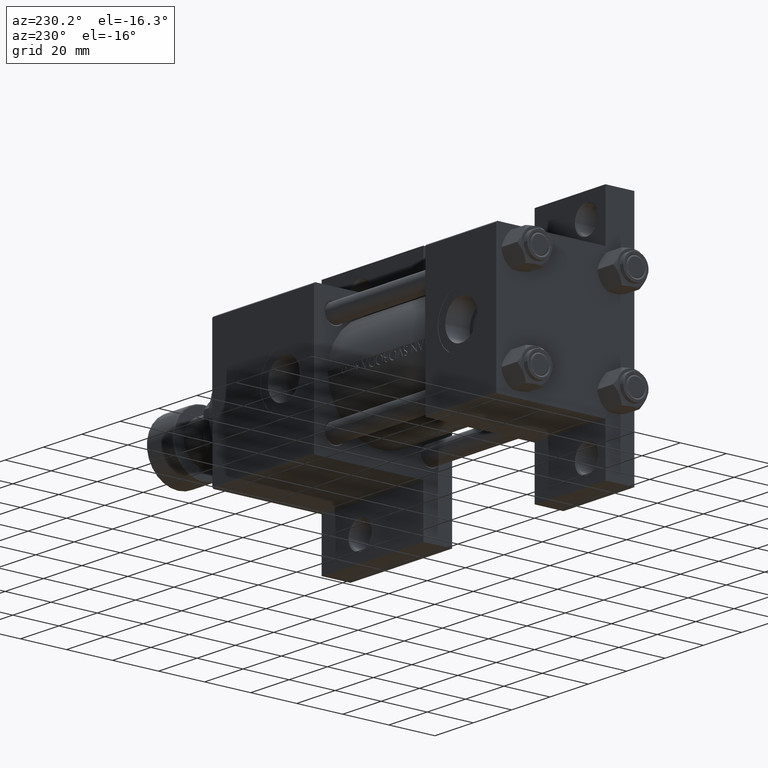
[diagram: clean part render]
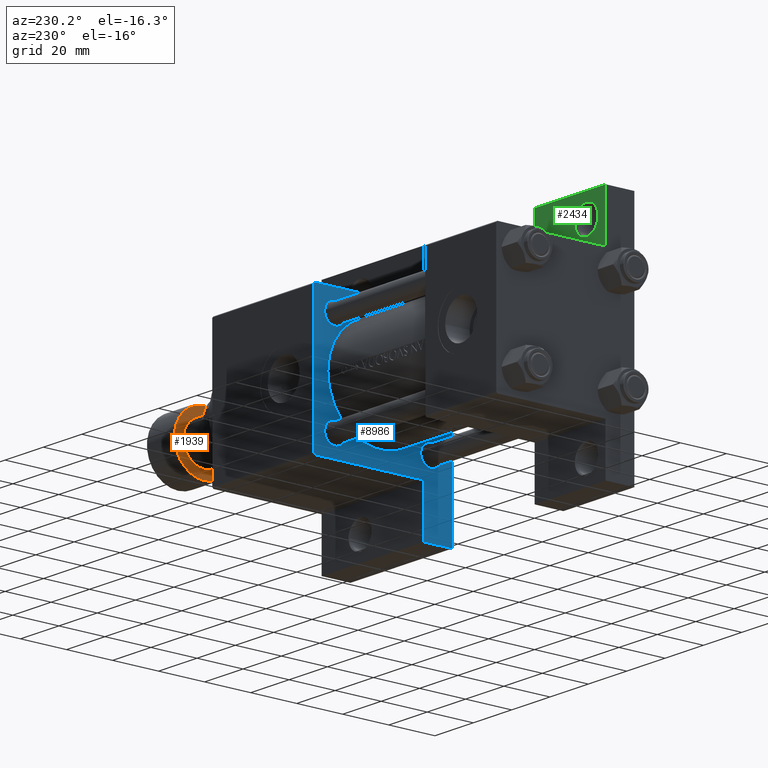
[diagram: same view with three faces highlighted in distinct colors, each labeled with its STEP entity id]
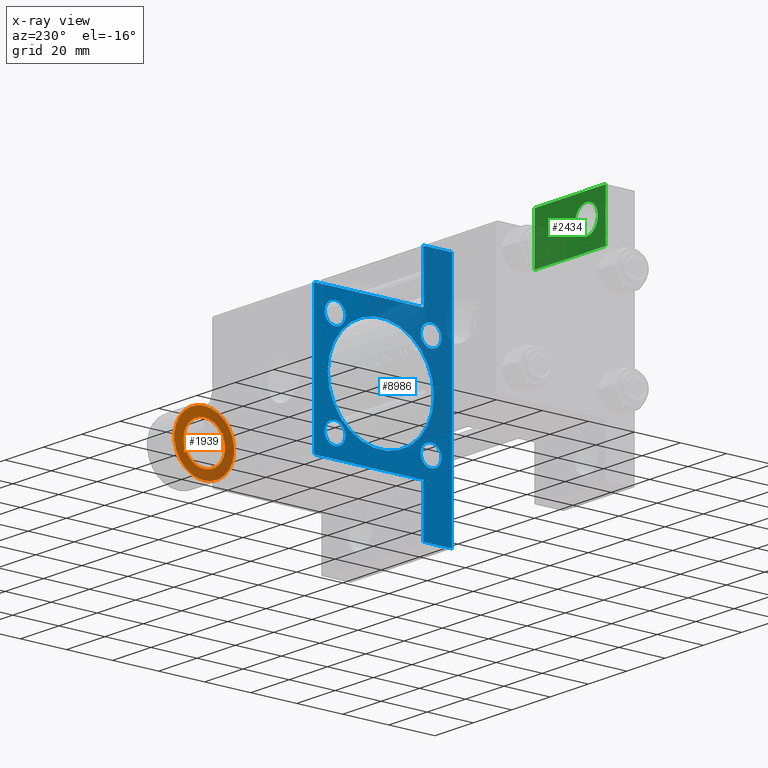
[diagram: x-ray of the same camera — body ghosted, the three highlighted faces saturated]
A machine part, auxiliary view with three faces highlighted in distinct colors.
The next image is the same camera in x-ray (body ghosted, the three faces saturated) — at least one of them is partly hidden behind the body in this view.
Their STEP definitions:

[orange] entity #1939 — the highlighted planar face has unit normal (1, 0, 0).
#1452 = DIRECTION ( 'NONE',  ( 1.000000000000000000, 0.000000000000000000, -0.000000000000000000 ) ) ;
#1504 = DIRECTION ( 'NONE',  ( -0.000000000000000000, -0.000000000000000000, -1.000000000000000000 ) ) ;
#1939 = ADVANCED_FACE ( 'NONE', ( #12660, #20683 ), #31373, .F. ) ;
#3838 = DIRECTION ( 'NONE',  ( 0.000000000000000000, 0.000000000000000000, -1.000000000000000000 ) ) ;
#5598 = CARTESIAN_POINT ( 'NONE',  ( 13.00000000000000000, 0.000000000000000000, -14.00000000000000000 ) ) ;
#5927 = AXIS2_PLACEMENT_3D ( 'NONE', #27235, #31136, #1452 ) ;
#7126 = EDGE_CURVE ( 'NONE', #30731, #32462, #22411, .T. ) ;
#8397 = EDGE_LOOP ( 'NONE', ( #15660, #26892 ) ) ;
#9276 = CARTESIAN_POINT ( 'NONE',  ( 0.000000000000000000, 0.000000000000000000, -14.00000000000000000 ) ) ;
#9520 = DIRECTION ( 'NONE',  ( 1.000000000000000000, 0.000000000000000000, 0.000000000000000000 ) ) ;
#11142 = CARTESIAN_POINT ( 'NONE',  ( 0.000000000000000000, 0.000000000000000000, -14.00000000000000000 ) ) ;
#11255 = CIRCLE ( 'NONE', #46961, 9.000000000000000000 ) ;
#11544 = AXIS2_PLACEMENT_3D ( 'NONE', #9276, #23846, #9520 ) ;
#12660 = FACE_OUTER_BOUND ( 'NONE', #8397, .T. ) ;
#15660 = ORIENTED_EDGE ( 'NONE', *, *, #44758, .T. ) ;
#20683 = FACE_BOUND ( 'NONE', #45260, .T. ) ;
#22411 = CIRCLE ( 'NONE', #11544, 13.00000000000000000 ) ;
#23846 = DIRECTION ( 'NONE',  ( -0.000000000000000000, -0.000000000000000000, -1.000000000000000000 ) ) ;
#24054 = CARTESIAN_POINT ( 'NONE',  ( 9.000000000000000000, 0.000000000000000000, -14.00000000000000000 ) ) ;
#26101 = DIRECTION ( 'NONE',  ( -1.000000000000000000, 0.000000000000000000, 0.000000000000000000 ) ) ;
#26340 = CARTESIAN_POINT ( 'NONE',  ( 0.000000000000000000, 0.000000000000000000, -14.00000000000000000 ) ) ;
#26470 = ORIENTED_EDGE ( 'NONE', *, *, #26522, .F. ) ;
#26522 = EDGE_CURVE ( 'NONE', #40440, #36792, #36073, .T. ) ;
#26892 = ORIENTED_EDGE ( 'NONE', *, *, #7126, .T. ) ;
#27235 = CARTESIAN_POINT ( 'NONE',  ( 0.000000000000000000, 0.000000000000000000, -14.00000000000000000 ) ) ;
#30190 = CIRCLE ( 'NONE', #37953, 13.00000000000000000 ) ;
#30233 = DIRECTION ( 'NONE',  ( 0.000000000000000000, 0.000000000000000000, -1.000000000000000000 ) ) ;
#30726 = EDGE_CURVE ( 'NONE', #36792, #40440, #11255, .T. ) ;
#30731 = VERTEX_POINT ( 'NONE', #33499 ) ;
#31136 = DIRECTION ( 'NONE',  ( 0.000000000000000000, 0.000000000000000000, 1.000000000000000000 ) ) ;
#31373 = PLANE ( 'NONE',  #5927 ) ;
#32462 = VERTEX_POINT ( 'NONE', #5598 ) ;
#32790 = DIRECTION ( 'NONE',  ( -1.000000000000000000, 0.000000000000000000, 0.000000000000000000 ) ) ;
#33008 = CARTESIAN_POINT ( 'NONE',  ( -9.000000000000000000, 1.102182119232617714E-15, -14.00000000000000000 ) ) ;
#33499 = CARTESIAN_POINT ( 'NONE',  ( -13.00000000000000000, 1.622657008870242882E-15, -14.00000000000000000 ) ) ;
#34826 = CARTESIAN_POINT ( 'NONE',  ( 0.000000000000000000, 0.000000000000000000, -14.00000000000000000 ) ) ;
#36073 = CIRCLE ( 'NONE', #44587, 9.000000000000000000 ) ;
#36792 = VERTEX_POINT ( 'NONE', #24054 ) ;
#37953 = AXIS2_PLACEMENT_3D ( 'NONE', #34826, #1504, #47199 ) ;
#40440 = VERTEX_POINT ( 'NONE', #33008 ) ;
#41719 = ORIENTED_EDGE ( 'NONE', *, *, #30726, .F. ) ;
#44587 = AXIS2_PLACEMENT_3D ( 'NONE', #26340, #30233, #26101 ) ;
#44758 = EDGE_CURVE ( 'NONE', #32462, #30731, #30190, .T. ) ;
#45260 = EDGE_LOOP ( 'NONE', ( #41719, #26470 ) ) ;
#46961 = AXIS2_PLACEMENT_3D ( 'NONE', #11142, #3838, #32790 ) ;
#47199 = DIRECTION ( 'NONE',  ( 1.000000000000000000, 0.000000000000000000, 0.000000000000000000 ) ) ;

[blue] entity #8986 — the highlighted planar face has unit normal (-1, 0, -0).
#70 = DIRECTION ( 'NONE',  ( 0.000000000000000000, 0.000000000000000000, -1.000000000000000000 ) ) ;
#162 = CIRCLE ( 'NONE', #41298, 23.00000000000000000 ) ;
#1249 = ORIENTED_EDGE ( 'NONE', *, *, #25659, .F. ) ;
#1477 = DIRECTION ( 'NONE',  ( 0.000000000000000000, 0.000000000000000000, 1.000000000000000000 ) ) ;
#1530 = VECTOR ( 'NONE', #29260, 1000.000000000000000 ) ;
#1551 = VERTEX_POINT ( 'NONE', #5164 ) ;
#3324 = ORIENTED_EDGE ( 'NONE', *, *, #13956, .T. ) ;
#3625 = CARTESIAN_POINT ( 'NONE',  ( 95.00000000000000000, -20.84999999999999076, -25.35000000000001208 ) ) ;
#3704 = CARTESIAN_POINT ( 'NONE',  ( 95.00000000000000000, 0.000000000000000000, 1.000000000000000888 ) ) ;
#3731 = ORIENTED_EDGE ( 'NONE', *, *, #47565, .T. ) ;
#4013 = VECTOR ( 'NONE', #25814, 1000.000000000000114 ) ;
#4037 = CARTESIAN_POINT ( 'NONE',  ( 95.00000000000000000, 51.50000000000000711, -17.49999999999999645 ) ) ;
#4085 = CARTESIAN_POINT ( 'NONE',  ( 95.00000000000000000, -20.84999999999999076, 25.35000000000001208 ) ) ;
#4718 = VECTOR ( 'NONE', #4914, 1000.000000000000000 ) ;
#4914 = DIRECTION ( 'NONE',  ( 0.000000000000000000, -1.000000000000000000, -1.156482317317871478E-16 ) ) ;
#5132 = CARTESIAN_POINT ( 'NONE',  ( 95.00000000000000000, 20.84999999999999787, 20.85000000000000142 ) ) ;
#5164 = CARTESIAN_POINT ( 'NONE',  ( 95.00000000000000000, -30.00000000000000000, -17.49999999999999645 ) ) ;
#5676 = DIRECTION ( 'NONE',  ( 1.000000000000000000, -0.000000000000000000, 0.000000000000000000 ) ) ;
#6223 = CIRCLE ( 'NONE', #21739, 23.00000000000000000 ) ;
#6226 = CARTESIAN_POINT ( 'NONE',  ( 95.00000000000000000, 20.84999999999999787, 16.34999999999999432 ) ) ;
#6391 = CARTESIAN_POINT ( 'NONE',  ( 95.00000000000000000, 29.74999999999999645, 29.74999999999999645 ) ) ;
#6602 = CARTESIAN_POINT ( 'NONE',  ( 95.00000000000000000, 30.00000000000000000, 29.50000000000000000 ) ) ;
#6655 = ORIENTED_EDGE ( 'NONE', *, *, #26188, .T. ) ;
#7438 = LINE ( 'NONE', #30507, #37895 ) ;
#7449 = DIRECTION ( 'NONE',  ( 0.000000000000000000, 0.000000000000000000, -1.000000000000000000 ) ) ;
#7719 = CARTESIAN_POINT ( 'NONE',  ( 95.00000000000000000, -30.00000000000000000, 29.50000000000004619 ) ) ;
#7889 = LINE ( 'NONE', #11314, #38618 ) ;
#8126 = EDGE_LOOP ( 'NONE', ( #12338, #12094, #3324, #21417, #6655, #40461, #37038, #14708, #1249, #28790 ) ) ;
#8202 = DIRECTION ( 'NONE',  ( -1.000000000000000000, 0.000000000000000000, -0.000000000000000000 ) ) ;
#8725 = DIRECTION ( 'NONE',  ( 1.000000000000000000, 0.000000000000000000, 0.000000000000000000 ) ) ;
#8822 = CIRCLE ( 'NONE', #42194, 4.500000000000007105 ) ;
#8824 = CARTESIAN_POINT ( 'NONE',  ( 95.00000000000000000, -20.84999999999999076, 20.85000000000000497 ) ) ;
#8950 = EDGE_LOOP ( 'NONE', ( #27906, #18902 ) ) ;
#8986 = ADVANCED_FACE ( 'NONE', ( #30344, #37412, #18446, #45159, #33283, #11874 ), #29647, .T. ) ;
#9033 = VECTOR ( 'NONE', #18149, 1000.000000000000000 ) ;
#10021 = CIRCLE ( 'NONE', #24767, 4.500000000000007105 ) ;
#10867 = CARTESIAN_POINT ( 'NONE',  ( 95.00000000000000000, 51.50000000000000711, -17.49999999999999645 ) ) ;
#11288 = ORIENTED_EDGE ( 'NONE', *, *, #16689, .T. ) ;
#11314 = CARTESIAN_POINT ( 'NONE',  ( 95.00000000000000000, 30.00000000000000000, 30.00000000000000000 ) ) ;
#11551 = DIRECTION ( 'NONE',  ( 0.000000000000000000, -1.000000000000000000, -1.156482317317871478E-16 ) ) ;
#11600 = CIRCLE ( 'NONE', #38768, 4.500000000000007105 ) ;
#11723 = VECTOR ( 'NONE', #13661, 1000.000000000000000 ) ;
#11874 = FACE_OUTER_BOUND ( 'NONE', #8126, .T. ) ;
#12094 = ORIENTED_EDGE ( 'NONE', *, *, #15135, .T. ) ;
#12180 = EDGE_CURVE ( 'NONE', #14730, #34950, #10021, .T. ) ;
#12218 = AXIS2_PLACEMENT_3D ( 'NONE', #41222, #45105, #33701 ) ;
#12338 = ORIENTED_EDGE ( 'NONE', *, *, #37287, .F. ) ;
#12591 = DIRECTION ( 'NONE',  ( 0.000000000000000000, 0.000000000000000000, 1.000000000000000000 ) ) ;
#12710 = CARTESIAN_POINT ( 'NONE',  ( 95.00000000000000000, 30.00000000000000000, -29.99999999999999289 ) ) ;
#12779 = ORIENTED_EDGE ( 'NONE', *, *, #25207, .T. ) ;
#12881 = VERTEX_POINT ( 'NONE', #14711 ) ;
#12970 = DIRECTION ( 'NONE',  ( 1.000000000000000000, -0.000000000000000000, 0.000000000000000000 ) ) ;
#13661 = DIRECTION ( 'NONE',  ( 0.000000000000000000, 0.000000000000000000, -1.000000000000000000 ) ) ;
#13880 = CARTESIAN_POINT ( 'NONE',  ( 94.99999999999998579, -51.50000000000000711, -29.99999999999999645 ) ) ;
#13946 = CARTESIAN_POINT ( 'NONE',  ( 95.00000000000000000, 30.00000000000000000, 30.00000000000000000 ) ) ;
#13956 = EDGE_CURVE ( 'NONE', #17130, #16578, #17835, .T. ) ;
#14097 = AXIS2_PLACEMENT_3D ( 'NONE', #8824, #12970, #16609 ) ;
#14182 = CARTESIAN_POINT ( 'NONE',  ( 95.00000000000000000, 2.816687638038911957E-15, -22.00000000000000000 ) ) ;
#14708 = ORIENTED_EDGE ( 'NONE', *, *, #38262, .T. ) ;
#14711 = CARTESIAN_POINT ( 'NONE',  ( 95.00000000000000000, 29.50000000000000000, 30.00000000000000000 ) ) ;
#14730 = VERTEX_POINT ( 'NONE', #46570 ) ;
#14892 = EDGE_CURVE ( 'NONE', #28059, #42769, #46710, .T. ) ;
#14993 = EDGE_CURVE ( 'NONE', #34950, #14730, #44366, .T. ) ;
#15135 = EDGE_CURVE ( 'NONE', #12881, #17130, #40161, .T. ) ;
#15270 = DIRECTION ( 'NONE',  ( -0.000000000000000000, 0.000000000000000000, 1.000000000000000000 ) ) ;
#16158 = ORIENTED_EDGE ( 'NONE', *, *, #42796, .T. ) ;
#16564 = DIRECTION ( 'NONE',  ( 0.000000000000000000, 0.000000000000000000, 1.000000000000000000 ) ) ;
#16578 = VERTEX_POINT ( 'NONE', #21127 ) ;
#16609 = DIRECTION ( 'NONE',  ( 0.000000000000000000, 0.000000000000000000, 1.000000000000000000 ) ) ;
#16689 = EDGE_CURVE ( 'NONE', #16827, #46412, #29671, .T. ) ;
#16827 = VERTEX_POINT ( 'NONE', #6226 ) ;
#17011 = EDGE_CURVE ( 'NONE', #45514, #19906, #38219, .T. ) ;
#17057 = EDGE_CURVE ( 'NONE', #31869, #19906, #35559, .T. ) ;
#17130 = VERTEX_POINT ( 'NONE', #6602 ) ;
#17835 = LINE ( 'NONE', #13946, #1530 ) ;
#18041 = CARTESIAN_POINT ( 'NONE',  ( 95.00000000000000000, 20.84999999999999787, 25.35000000000000853 ) ) ;
#18149 = DIRECTION ( 'NONE',  ( -0.000000000000000000, 1.000000000000000000, -0.000000000000000000 ) ) ;
#18446 = FACE_BOUND ( 'NONE', #24242, .T. ) ;
#18618 = AXIS2_PLACEMENT_3D ( 'NONE', #18923, #8202, #15270 ) ;
#18902 = ORIENTED_EDGE ( 'NONE', *, *, #14993, .T. ) ;
#18923 = CARTESIAN_POINT ( 'NONE',  ( 95.00000000000000000, 0.000000000000000000, 0.000000000000000000 ) ) ;
#19906 = VERTEX_POINT ( 'NONE', #13880 ) ;
#19963 = DIRECTION ( 'NONE',  ( 1.000000000000000000, -0.000000000000000000, 0.000000000000000000 ) ) ;
#20183 = EDGE_CURVE ( 'NONE', #24167, #31252, #162, .T. ) ;
#20219 = DIRECTION ( 'NONE',  ( 1.000000000000000000, -0.000000000000000000, 0.000000000000000000 ) ) ;
#20534 = VECTOR ( 'NONE', #7449, 1000.000000000000000 ) ;
#20591 = VERTEX_POINT ( 'NONE', #23866 ) ;
#20682 = CARTESIAN_POINT ( 'NONE',  ( 95.00000000000000000, -30.00000000000000000, 29.99999999999999289 ) ) ;
#20740 = CARTESIAN_POINT ( 'NONE',  ( 95.00000000000000000, 51.50000000000000711, -29.99999999999999645 ) ) ;
#21127 = CARTESIAN_POINT ( 'NONE',  ( 95.00000000000000000, 30.00000000000000000, -17.49999999999998224 ) ) ;
#21417 = ORIENTED_EDGE ( 'NONE', *, *, #34198, .T. ) ;
#21739 = AXIS2_PLACEMENT_3D ( 'NONE', #3704, #33376, #70 ) ;
#22064 = DIRECTION ( 'NONE',  ( 1.000000000000000000, -0.000000000000000000, 0.000000000000000000 ) ) ;
#22075 = ORIENTED_EDGE ( 'NONE', *, *, #20183, .T. ) ;
#22271 = DIRECTION ( 'NONE',  ( -0.000000000000000000, 0.7071067811865671127, 0.7071067811865279218 ) ) ;
#22585 = AXIS2_PLACEMENT_3D ( 'NONE', #26882, #22064, #25943 ) ;
#22730 = LINE ( 'NONE', #30494, #23916 ) ;
#22897 = VERTEX_POINT ( 'NONE', #28007 ) ;
#23829 = DIRECTION ( 'NONE',  ( 0.000000000000000000, 0.000000000000000000, -1.000000000000000000 ) ) ;
#23866 = CARTESIAN_POINT ( 'NONE',  ( 95.00000000000000000, 20.84999999999999787, -25.35000000000000853 ) ) ;
#23916 = VECTOR ( 'NONE', #45555, 1000.000000000000000 ) ;
#24167 = VERTEX_POINT ( 'NONE', #44006 ) ;
#24242 = EDGE_LOOP ( 'NONE', ( #3731, #25558 ) ) ;
#24436 = EDGE_CURVE ( 'NONE', #20591, #28329, #8822, .T. ) ;
#24541 = CARTESIAN_POINT ( 'NONE',  ( 94.99999999999998579, -51.50000000000000711, -17.49999999999999645 ) ) ;
#24767 = AXIS2_PLACEMENT_3D ( 'NONE', #27999, #20219, #16564 ) ;
#24884 = CARTESIAN_POINT ( 'NONE',  ( 95.00000000000000000, -29.50000000000002487, 29.99999999999999289 ) ) ;
#25207 = EDGE_CURVE ( 'NONE', #42769, #28059, #45308, .T. ) ;
#25257 = DIRECTION ( 'NONE',  ( 1.000000000000000000, -0.000000000000000000, 0.000000000000000000 ) ) ;
#25495 = DIRECTION ( 'NONE',  ( 0.000000000000000000, 0.000000000000000000, 1.000000000000000000 ) ) ;
#25558 = ORIENTED_EDGE ( 'NONE', *, *, #24436, .T. ) ;
#25659 = EDGE_CURVE ( 'NONE', #30855, #1551, #32092, .T. ) ;
#25814 = DIRECTION ( 'NONE',  ( 0.000000000000000000, 0.7071067811865474617, -0.7071067811865474617 ) ) ;
#25943 = DIRECTION ( 'NONE',  ( 0.000000000000000000, 0.000000000000000000, 1.000000000000000000 ) ) ;
#26156 = LINE ( 'NONE', #4037, #20534 ) ;
#26188 = EDGE_CURVE ( 'NONE', #22897, #45514, #26156, .T. ) ;
#26716 = VECTOR ( 'NONE', #23829, 1000.000000000000000 ) ;
#26882 = CARTESIAN_POINT ( 'NONE',  ( 95.00000000000000000, 20.84999999999999787, 20.85000000000000142 ) ) ;
#27906 = ORIENTED_EDGE ( 'NONE', *, *, #12180, .T. ) ;
#27999 = CARTESIAN_POINT ( 'NONE',  ( 95.00000000000000000, -20.84999999999999076, -20.85000000000000497 ) ) ;
#28007 = CARTESIAN_POINT ( 'NONE',  ( 95.00000000000000000, 51.50000000000000711, -17.49999999999999645 ) ) ;
#28059 = VERTEX_POINT ( 'NONE', #4085 ) ;
#28277 = CARTESIAN_POINT ( 'NONE',  ( 95.00000000000000000, -20.84999999999999076, -20.85000000000000497 ) ) ;
#28329 = VERTEX_POINT ( 'NONE', #46353 ) ;
#28674 = CARTESIAN_POINT ( 'NONE',  ( 95.00000000000000000, 20.84999999999999787, -20.85000000000000142 ) ) ;
#28790 = ORIENTED_EDGE ( 'NONE', *, *, #45150, .T. ) ;
#28877 = EDGE_LOOP ( 'NONE', ( #36646, #12779 ) ) ;
#29260 = DIRECTION ( 'NONE',  ( 0.000000000000000000, 0.000000000000000000, -1.000000000000000000 ) ) ;
#29647 = PLANE ( 'NONE',  #18618 ) ;
#29671 = CIRCLE ( 'NONE', #22585, 4.500000000000007105 ) ;
#30344 = FACE_BOUND ( 'NONE', #28877, .T. ) ;
#30494 = CARTESIAN_POINT ( 'NONE',  ( 94.99999999999998579, -51.50000000000000711, -17.49999999999999645 ) ) ;
#30507 = CARTESIAN_POINT ( 'NONE',  ( 95.00000000000000000, -29.74999999999918643, 29.75000000000083489 ) ) ;
#30849 = DIRECTION ( 'NONE',  ( 0.000000000000000000, 0.000000000000000000, -1.000000000000000000 ) ) ;
#30855 = VERTEX_POINT ( 'NONE', #7719 ) ;
#31252 = VERTEX_POINT ( 'NONE', #14182 ) ;
#31673 = CARTESIAN_POINT ( 'NONE',  ( 94.99999999999998579, -51.50000000000000711, -17.49999999999999645 ) ) ;
#31869 = VERTEX_POINT ( 'NONE', #24541 ) ;
#31888 = CARTESIAN_POINT ( 'NONE',  ( 95.00000000000000000, -20.84999999999999076, 16.34999999999999787 ) ) ;
#32092 = LINE ( 'NONE', #20682, #26716 ) ;
#33283 = FACE_BOUND ( 'NONE', #47858, .T. ) ;
#33376 = DIRECTION ( 'NONE',  ( 1.000000000000000000, 0.000000000000000000, 0.000000000000000000 ) ) ;
#33701 = DIRECTION ( 'NONE',  ( 0.000000000000000000, 0.000000000000000000, 1.000000000000000000 ) ) ;
#33832 = EDGE_LOOP ( 'NONE', ( #16158, #11288 ) ) ;
#34198 = EDGE_CURVE ( 'NONE', #16578, #22897, #39800, .T. ) ;
#34695 = DIRECTION ( 'NONE',  ( 1.000000000000000000, -0.000000000000000000, 0.000000000000000000 ) ) ;
#34950 = VERTEX_POINT ( 'NONE', #3625 ) ;
#35559 = LINE ( 'NONE', #31673, #11723 ) ;
#36646 = ORIENTED_EDGE ( 'NONE', *, *, #14892, .T. ) ;
#36771 = AXIS2_PLACEMENT_3D ( 'NONE', #42469, #34695, #12591 ) ;
#37038 = ORIENTED_EDGE ( 'NONE', *, *, #17057, .F. ) ;
#37287 = EDGE_CURVE ( 'NONE', #12881, #39940, #7889, .T. ) ;
#37412 = FACE_BOUND ( 'NONE', #33832, .T. ) ;
#37895 = VECTOR ( 'NONE', #22271, 1000.000000000000000 ) ;
#38219 = LINE ( 'NONE', #12710, #4718 ) ;
#38262 = EDGE_CURVE ( 'NONE', #31869, #1551, #22730, .T. ) ;
#38618 = VECTOR ( 'NONE', #11551, 1000.000000000000000 ) ;
#38625 = CARTESIAN_POINT ( 'NONE',  ( 95.00000000000000000, 0.000000000000000000, 1.000000000000000888 ) ) ;
#38648 = ORIENTED_EDGE ( 'NONE', *, *, #43474, .T. ) ;
#38768 = AXIS2_PLACEMENT_3D ( 'NONE', #5132, #19963, #1477 ) ;
#39209 = DIRECTION ( 'NONE',  ( 0.000000000000000000, 0.000000000000000000, 1.000000000000000000 ) ) ;
#39401 = CIRCLE ( 'NONE', #12218, 4.500000000000007105 ) ;
#39800 = LINE ( 'NONE', #10867, #9033 ) ;
#39940 = VERTEX_POINT ( 'NONE', #24884 ) ;
#40161 = LINE ( 'NONE', #6391, #4013 ) ;
#40461 = ORIENTED_EDGE ( 'NONE', *, *, #17011, .T. ) ;
#41222 = CARTESIAN_POINT ( 'NONE',  ( 95.00000000000000000, 20.84999999999999787, -20.85000000000000142 ) ) ;
#41298 = AXIS2_PLACEMENT_3D ( 'NONE', #38625, #8725, #30849 ) ;
#42194 = AXIS2_PLACEMENT_3D ( 'NONE', #28674, #25257, #25495 ) ;
#42469 = CARTESIAN_POINT ( 'NONE',  ( 95.00000000000000000, -20.84999999999999076, 20.85000000000000497 ) ) ;
#42769 = VERTEX_POINT ( 'NONE', #31888 ) ;
#42796 = EDGE_CURVE ( 'NONE', #46412, #16827, #11600, .T. ) ;
#43474 = EDGE_CURVE ( 'NONE', #31252, #24167, #6223, .T. ) ;
#44006 = CARTESIAN_POINT ( 'NONE',  ( 95.00000000000000000, 0.000000000000000000, 24.00000000000000000 ) ) ;
#44366 = CIRCLE ( 'NONE', #45120, 4.500000000000007105 ) ;
#45105 = DIRECTION ( 'NONE',  ( 1.000000000000000000, -0.000000000000000000, 0.000000000000000000 ) ) ;
#45120 = AXIS2_PLACEMENT_3D ( 'NONE', #28277, #5676, #39209 ) ;
#45150 = EDGE_CURVE ( 'NONE', #30855, #39940, #7438, .T. ) ;
#45159 = FACE_BOUND ( 'NONE', #8950, .T. ) ;
#45308 = CIRCLE ( 'NONE', #36771, 4.500000000000007105 ) ;
#45514 = VERTEX_POINT ( 'NONE', #20740 ) ;
#45555 = DIRECTION ( 'NONE',  ( 6.454785026890443649E-16, 1.000000000000000000, 0.000000000000000000 ) ) ;
#46353 = CARTESIAN_POINT ( 'NONE',  ( 95.00000000000000000, 20.84999999999999787, -16.34999999999999432 ) ) ;
#46412 = VERTEX_POINT ( 'NONE', #18041 ) ;
#46570 = CARTESIAN_POINT ( 'NONE',  ( 95.00000000000000000, -20.84999999999999076, -16.34999999999999787 ) ) ;
#46710 = CIRCLE ( 'NONE', #14097, 4.500000000000007105 ) ;
#47565 = EDGE_CURVE ( 'NONE', #28329, #20591, #39401, .T. ) ;
#47858 = EDGE_LOOP ( 'NONE', ( #22075, #38648 ) ) ;

[green] entity #2434 — the highlighted planar face has unit normal (0, -1, 0).
#57 = ORIENTED_EDGE ( 'NONE', *, *, #26762, .T. ) ;
#777 = CARTESIAN_POINT ( 'NONE',  ( 3.977209754999733403E-16, -51.49999999999999289, -17.49999999999999645 ) ) ;
#2434 = ADVANCED_FACE ( 'NONE', ( #46858, #35450 ), #16970, .F. ) ;
#3406 = EDGE_CURVE ( 'NONE', #7823, #16971, #5140, .T. ) ;
#4485 = VERTEX_POINT ( 'NONE', #44367 ) ;
#5140 = LINE ( 'NONE', #777, #16045 ) ;
#5384 = CARTESIAN_POINT ( 'NONE',  ( 3.977209754999747208E-16, -51.49999999999999289, -17.49999999999999645 ) ) ;
#5408 = DIRECTION ( 'NONE',  ( -1.000000000000000000, 0.000000000000000000, 0.000000000000000000 ) ) ;
#5808 = VECTOR ( 'NONE', #26042, 1000.000000000000000 ) ;
#7823 = VERTEX_POINT ( 'NONE', #5384 ) ;
#8508 = VECTOR ( 'NONE', #11645, 1000.000000000000000 ) ;
#8569 = ORIENTED_EDGE ( 'NONE', *, *, #8943, .T. ) ;
#8943 = EDGE_CURVE ( 'NONE', #38769, #4485, #12101, .T. ) ;
#10297 = LINE ( 'NONE', #10532, #23270 ) ;
#10532 = CARTESIAN_POINT ( 'NONE',  ( 37.00000000000000000, -51.49999999999999289, -17.49999999999999645 ) ) ;
#10611 = AXIS2_PLACEMENT_3D ( 'NONE', #46622, #17446, #43907 ) ;
#11645 = DIRECTION ( 'NONE',  ( -1.000000000000000000, 9.376883653928687363E-17, 0.000000000000000000 ) ) ;
#11921 = CIRCLE ( 'NONE', #39096, 5.999499999999990507 ) ;
#12101 = LINE ( 'NONE', #26681, #8508 ) ;
#12158 = CARTESIAN_POINT ( 'NONE',  ( 37.00000000000000000, -30.00000000000000000, -17.49999999999999645 ) ) ;
#13138 = ORIENTED_EDGE ( 'NONE', *, *, #43399, .T. ) ;
#15851 = CARTESIAN_POINT ( 'NONE',  ( 37.00000000000000000, -51.50000000000000000, -17.49999999999999645 ) ) ;
#16045 = VECTOR ( 'NONE', #27267, 1000.000000000000000 ) ;
#16970 = PLANE ( 'NONE',  #10611 ) ;
#16971 = VERTEX_POINT ( 'NONE', #15851 ) ;
#17446 = DIRECTION ( 'NONE',  ( 0.000000000000000000, 0.000000000000000000, -1.000000000000000000 ) ) ;
#19939 = EDGE_LOOP ( 'NONE', ( #46312, #57 ) ) ;
#21333 = CIRCLE ( 'NONE', #33734, 5.999499999999990507 ) ;
#21719 = DIRECTION ( 'NONE',  ( -0.000000000000000000, 1.000000000000000000, 0.000000000000000000 ) ) ;
#21928 = LINE ( 'NONE', #22163, #5808 ) ;
#22163 = CARTESIAN_POINT ( 'NONE',  ( 3.977209754999743757E-16, -51.49999999999998579, -17.49999999999999645 ) ) ;
#23270 = VECTOR ( 'NONE', #21719, 1000.000000000000000 ) ;
#23581 = EDGE_LOOP ( 'NONE', ( #13138, #8569, #39418, #29202 ) ) ;
#23942 = EDGE_CURVE ( 'NONE', #32561, #31076, #11921, .T. ) ;
#26042 = DIRECTION ( 'NONE',  ( 5.173446966594771078E-17, -1.000000000000000000, 0.000000000000000000 ) ) ;
#26681 = CARTESIAN_POINT ( 'NONE',  ( -7.145701223179007004E-16, -30.00000000000000355, -17.49999999999999289 ) ) ;
#26692 = DIRECTION ( 'NONE',  ( -1.000000000000000000, 0.000000000000000000, 0.000000000000000000 ) ) ;
#26762 = EDGE_CURVE ( 'NONE', #31076, #32561, #21333, .T. ) ;
#27267 = DIRECTION ( 'NONE',  ( 1.000000000000000000, -1.875376730785737473E-16, 0.000000000000000000 ) ) ;
#29202 = ORIENTED_EDGE ( 'NONE', *, *, #3406, .T. ) ;
#30355 = CARTESIAN_POINT ( 'NONE',  ( 9.999999999999998224, -41.50000000000000711, -17.49999999999999645 ) ) ;
#30568 = EDGE_CURVE ( 'NONE', #4485, #7823, #21928, .T. ) ;
#30583 = DIRECTION ( 'NONE',  ( 0.000000000000000000, 0.000000000000000000, -1.000000000000000000 ) ) ;
#31076 = VERTEX_POINT ( 'NONE', #40776 ) ;
#31662 = DIRECTION ( 'NONE',  ( 0.000000000000000000, 0.000000000000000000, -1.000000000000000000 ) ) ;
#31905 = CARTESIAN_POINT ( 'NONE',  ( 9.999999999999998224, -41.50000000000000711, -17.49999999999999645 ) ) ;
#32324 = CARTESIAN_POINT ( 'NONE',  ( 15.99949999999998873, -41.50000000000000711, -17.49999999999999645 ) ) ;
#32561 = VERTEX_POINT ( 'NONE', #32324 ) ;
#33734 = AXIS2_PLACEMENT_3D ( 'NONE', #30355, #30583, #26692 ) ;
#35450 = FACE_OUTER_BOUND ( 'NONE', #23581, .T. ) ;
#38769 = VERTEX_POINT ( 'NONE', #12158 ) ;
#39096 = AXIS2_PLACEMENT_3D ( 'NONE', #31905, #31662, #5408 ) ;
#39418 = ORIENTED_EDGE ( 'NONE', *, *, #30568, .T. ) ;
#40776 = CARTESIAN_POINT ( 'NONE',  ( 4.000500000000007716, -41.50000000000000711, -17.49999999999999645 ) ) ;
#43399 = EDGE_CURVE ( 'NONE', #16971, #38769, #10297, .T. ) ;
#43907 = DIRECTION ( 'NONE',  ( -1.000000000000000000, 0.000000000000000000, -0.000000000000000000 ) ) ;
#44367 = CARTESIAN_POINT ( 'NONE',  ( -7.145701223179007990E-16, -29.99999999999999645, -17.49999999999999645 ) ) ;
#46312 = ORIENTED_EDGE ( 'NONE', *, *, #23942, .T. ) ;
#46622 = CARTESIAN_POINT ( 'NONE',  ( 0.000000000000000000, 0.000000000000000000, -17.49999999999999645 ) ) ;
#46858 = FACE_BOUND ( 'NONE', #19939, .T. ) ;